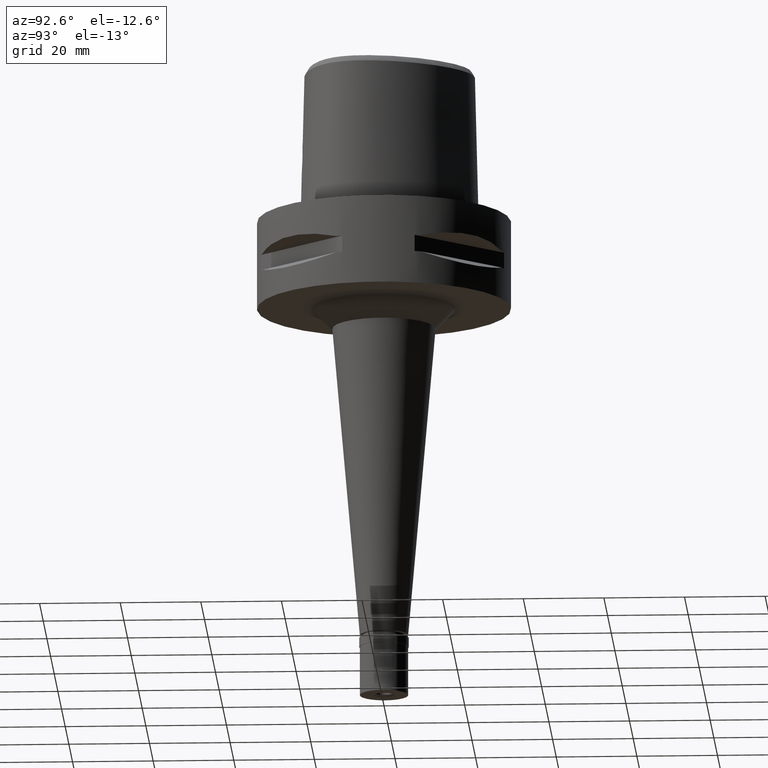
[diagram: clean part render]
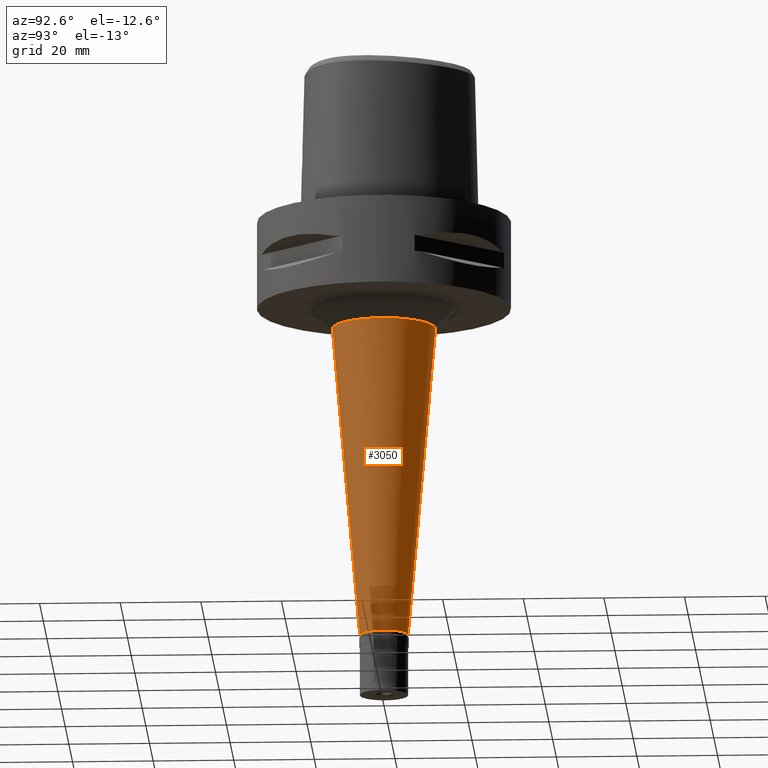
[diagram: same view with one face highlighted and labeled with its STEP entity id]
A machine part, auxiliary view. The second image highlights one B-rep face of the part: STEP entity #3050.
In plain terms, the highlighted conical surface has half-angle 5 deg.
Its self-contained STEP definition (entity closure, byte-faithful):
#93 = DIRECTION ( 'NONE',  ( 0.0000000000000000000, 0.0000000000000000000, 1.000000000000000000 ) ) ;
#104 = FACE_OUTER_BOUND ( 'NONE', #1647, .T. ) ;
#245 = CARTESIAN_POINT ( 'NONE',  ( 0.0000000000000000000, 6.000000000000000000, -104.8000000000000114 ) ) ;
#565 = EDGE_CURVE ( 'NONE', #3051, #2075, #4524, .T. ) ;
#881 = EDGE_CURVE ( 'NONE', #4893, #3153, #3103, .T. ) ;
#1084 = CARTESIAN_POINT ( 'NONE',  ( 0.0000000000000000000, -12.80661802232000035, -27.00000000000000000 ) ) ;
#1180 = VECTOR ( 'NONE', #3759, 1000.000000000000227 ) ;
#1254 = CARTESIAN_POINT ( 'NONE',  ( 0.0000000000000000000, 0.0000000000000000000, -27.00000000000000000 ) ) ;
#1414 = CONICAL_SURFACE ( 'NONE', #2928, 9.403309011158000885, 0.08726646259969973729 ) ;
#1589 = DIRECTION ( 'NONE',  ( 0.0000000000000000000, 1.000000000000000000, 0.0000000000000000000 ) ) ;
#1630 = DIRECTION ( 'NONE',  ( 0.0000000000000000000, -1.000000000000000000, 0.0000000000000000000 ) ) ;
#1647 = EDGE_LOOP ( 'NONE', ( #4023, #3794, #4335, #1752 ) ) ;
#1752 = ORIENTED_EDGE ( 'NONE', *, *, #565, .F. ) ;
#1825 = EDGE_CURVE ( 'NONE', #4893, #3051, #2936, .T. ) ;
#1975 = CIRCLE ( 'NONE', #2217, 6.000000000000000000 ) ;
#2075 = VERTEX_POINT ( 'NONE', #245 ) ;
#2217 = AXIS2_PLACEMENT_3D ( 'NONE', #3313, #3391, #4471 ) ;
#2297 = AXIS2_PLACEMENT_3D ( 'NONE', #1254, #93, #1630 ) ;
#2736 = CARTESIAN_POINT ( 'NONE',  ( 0.0000000000000000000, 12.80661802232000035, -27.00000000000000000 ) ) ;
#2928 = AXIS2_PLACEMENT_3D ( 'NONE', #3493, #3814, #1589 ) ;
#2936 = CIRCLE ( 'NONE', #2297, 12.80661802232000035 ) ;
#3050 = ADVANCED_FACE ( 'NONE', ( #104 ), #1414, .T. ) ;
#3051 = VERTEX_POINT ( 'NONE', #2736 ) ;
#3103 = LINE ( 'NONE', #3508, #1180 ) ;
#3153 = VERTEX_POINT ( 'NONE', #4671 ) ;
#3313 = CARTESIAN_POINT ( 'NONE',  ( 0.0000000000000000000, 0.0000000000000000000, -104.8000000000000114 ) ) ;
#3348 = DIRECTION ( 'NONE',  ( 0.0000000000000000000, -0.08715574274768382590, -0.9961946980917432137 ) ) ;
#3391 = DIRECTION ( 'NONE',  ( 0.0000000000000000000, 0.0000000000000000000, 1.000000000000000000 ) ) ;
#3493 = CARTESIAN_POINT ( 'NONE',  ( 0.0000000000000000000, 0.0000000000000000000, -65.90000000000000568 ) ) ;
#3508 = CARTESIAN_POINT ( 'NONE',  ( 0.0000000000000000000, -12.80661802232000035, -27.00000000000000000 ) ) ;
#3627 = EDGE_CURVE ( 'NONE', #3153, #2075, #1975, .T. ) ;
#3759 = DIRECTION ( 'NONE',  ( 0.0000000000000000000, 0.08715574274768382590, -0.9961946980917432137 ) ) ;
#3794 = ORIENTED_EDGE ( 'NONE', *, *, #881, .T. ) ;
#3814 = DIRECTION ( 'NONE',  ( 0.0000000000000000000, 0.0000000000000000000, 1.000000000000000000 ) ) ;
#4023 = ORIENTED_EDGE ( 'NONE', *, *, #1825, .F. ) ;
#4115 = CARTESIAN_POINT ( 'NONE',  ( 0.0000000000000000000, 12.80661802232000035, -27.00000000000000000 ) ) ;
#4218 = VECTOR ( 'NONE', #3348, 1000.000000000000227 ) ;
#4335 = ORIENTED_EDGE ( 'NONE', *, *, #3627, .T. ) ;
#4471 = DIRECTION ( 'NONE',  ( 0.0000000000000000000, -1.000000000000000000, 0.0000000000000000000 ) ) ;
#4524 = LINE ( 'NONE', #4115, #4218 ) ;
#4671 = CARTESIAN_POINT ( 'NONE',  ( 0.0000000000000000000, -6.000000000000000000, -104.8000000000000114 ) ) ;
#4893 = VERTEX_POINT ( 'NONE', #1084 ) ;